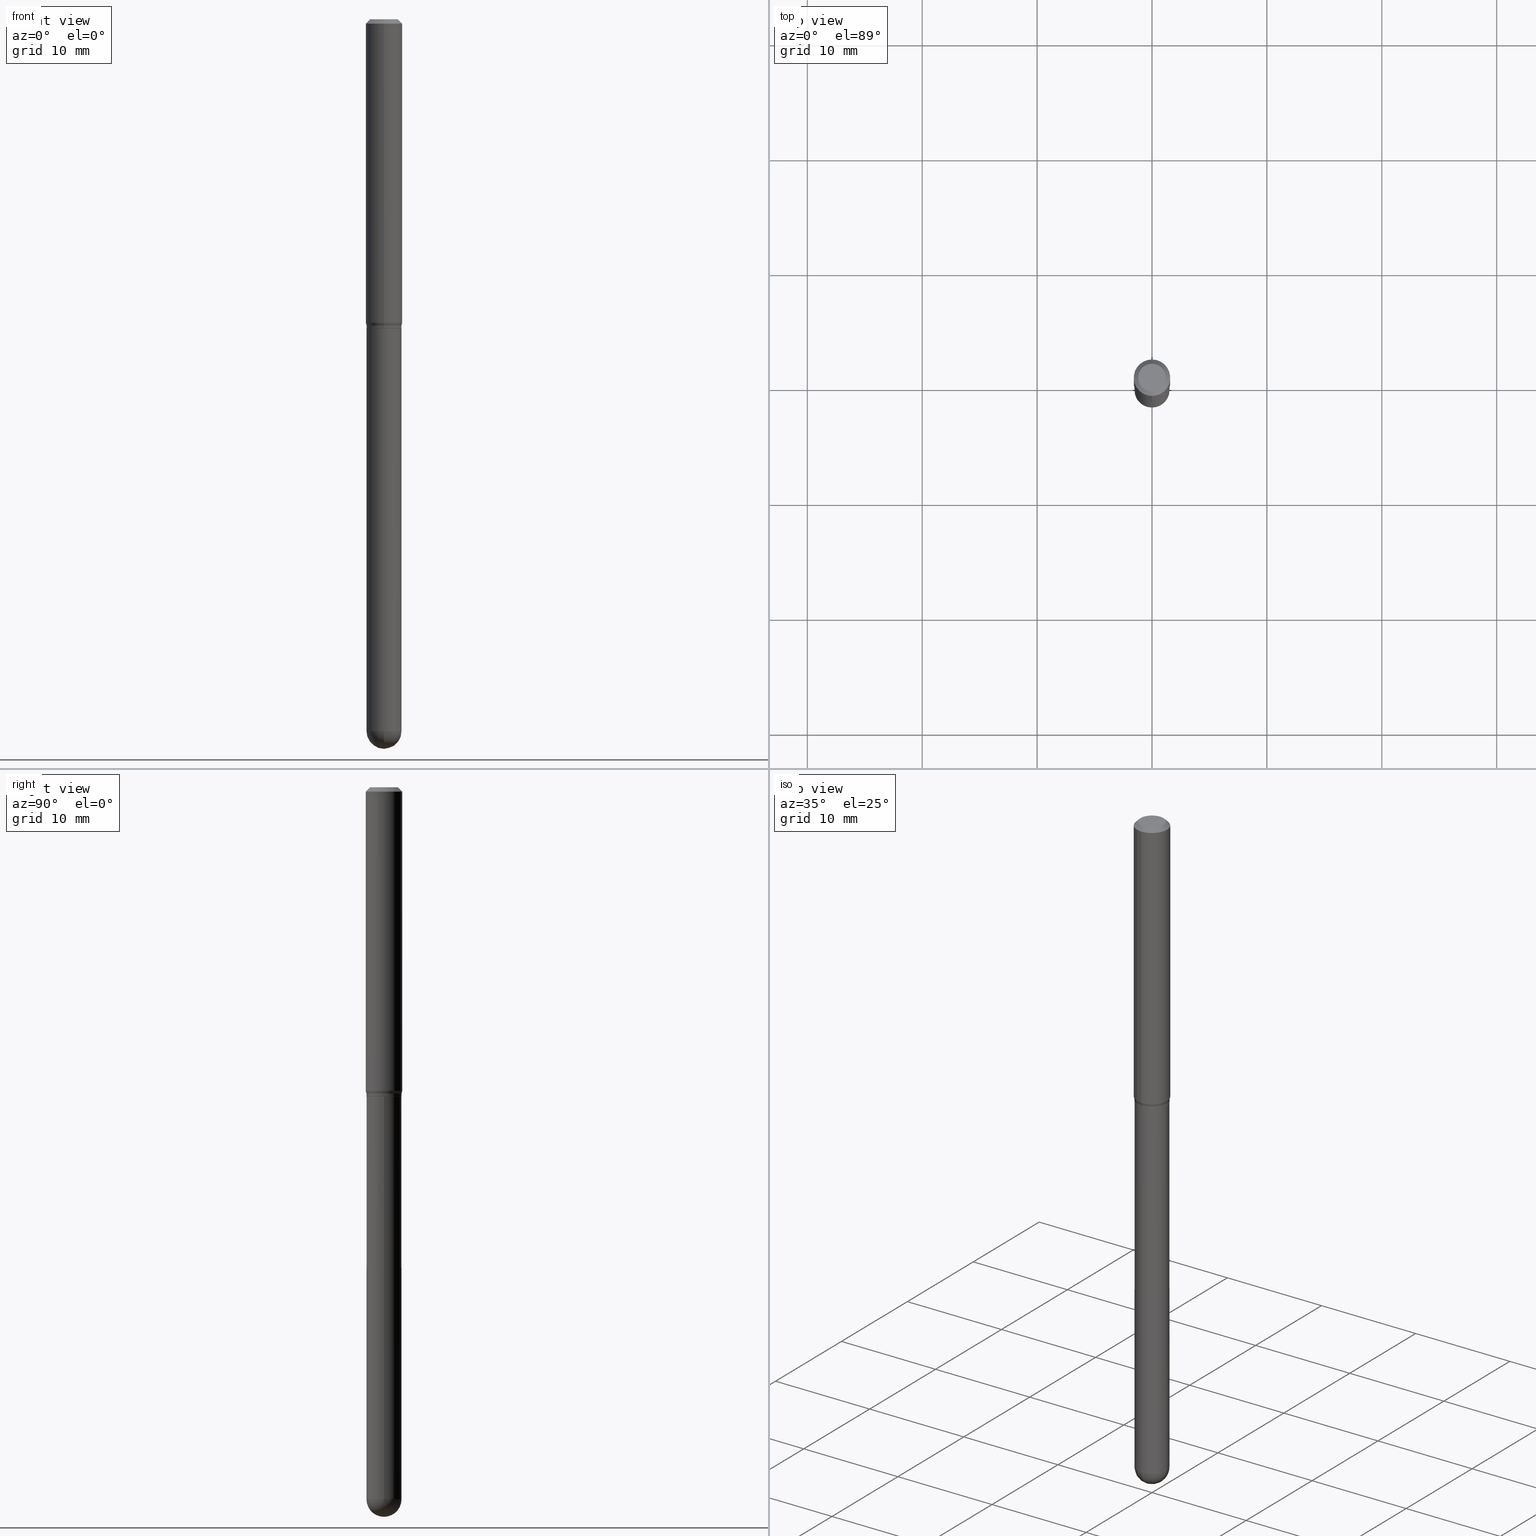
[diagram: canonical four-view strip — front | top / right | iso, engineering-drawing reading convention]
A machine part, canonical four-view strip (front | top / right | iso — engineering-drawing reading convention). The complete STEP part file that produces these views, byte-faithful:
ISO-10303-21;
HEADER;
FILE_DESCRIPTION (( 'STEP AP203' ),
    '1' );
FILE_NAME ('01032.STEP',
    '2024-03-07T19:58:30',
    ( '' ),
    ( '' ),
    'SwSTEP 2.0',
    'SolidWorks 2023',
    '' );
FILE_SCHEMA (( 'CONFIG_CONTROL_DESIGN' ));
ENDSEC;

DATA;
#1 = APPROVAL_DATE_TIME ( #351, #129 ) ;
#2 = VERTEX_POINT ( 'NONE', #322 ) ;
#3 = DIRECTION ( 'NONE',  ( 4.937700262164548042E-15, 0.7071067811865451302, -0.7071067811865499042 ) ) ;
#4 = DIRECTION ( 'NONE',  ( 5.024295867788190974E-15, 0.7071067811865681119, 0.7071067811865270336 ) ) ;
#5 = EDGE_CURVE ( 'NONE', #162, #45, #431, .T. ) ;
#6 = CARTESIAN_POINT ( 'NONE',  ( 4.227729277772853776E-16, 0.05949999999999628503, -1.060000000000000497 ) ) ;
#7 = ORIENTED_EDGE ( 'NONE', *, *, #119, .F. ) ;
#8 = DATE_AND_TIME ( #61, #331 ) ;
#9 = VERTEX_POINT ( 'NONE', #56 ) ;
#10 = AXIS2_PLACEMENT_3D ( 'NONE', #409, #247, #210 ) ;
#11 = APPROVAL_PERSON_ORGANIZATION ( #443, #129, #76 ) ;
#12 = DIRECTION ( 'NONE',  ( 6.982962677686265922E-15, 1.000000000000000000, 0.000000000000000000 ) ) ;
#13 = DIRECTION ( 'NONE',  ( -1.807323732225338028E-15, -0.2588190451025192962, 0.9659258262890687563 ) ) ;
#14 = ORIENTED_EDGE ( 'NONE', *, *, #426, .F. ) ;
#15 = EDGE_CURVE ( 'NONE', #367, #2, #197, .T. ) ;
#16 = CARTESIAN_POINT ( 'NONE',  ( 2.567574004537979916E-29, -3.666296337842626652E-15, -1.050000000000000266 ) ) ;
#17 = EDGE_LOOP ( 'NONE', ( #459, #114, #277, #239 ) ) ;
#18 = CARTESIAN_POINT ( 'NONE',  ( 2.592027090295484369E-29, -3.701213445822080051E-15, -1.060000000000000275 ) ) ;
#19 = AXIS2_PLACEMENT_3D ( 'NONE', #461, #93, #135 ) ;
#20 = AXIS2_PLACEMENT_3D ( 'NONE', #429, #22, #179 ) ;
#21 = CARTESIAN_POINT ( 'NONE',  ( -0.06000000000000001166, 4.263256414560601944E-16, -2.951361054152943763E-30 ) ) ;
#22 = DIRECTION ( 'NONE',  ( -2.445308575750456249E-29, 3.491710797945357683E-15, 1.000000000000000000 ) ) ;
#23 = DIRECTION ( 'NONE',  ( 1.000000000000000000, -6.982962677686266711E-15, 4.876176775795935793E-29 ) ) ;
#24 = DIRECTION ( 'NONE',  ( -2.445308575750456249E-29, 3.491710797945358078E-15, 1.000000000000000000 ) ) ;
#25 = CARTESIAN_POINT ( 'NONE',  ( 0.000000000000000000, 0.000000000000000000, 0.000000000000000000 ) ) ;
#26 = VECTOR ( 'NONE', #339, 39.37007874015748143 ) ;
#27 = APPROVAL_PERSON_ORGANIZATION ( #170, #274, #84 ) ;
#28 = ADVANCED_FACE ( 'NONE', ( #209 ), #494, .T. ) ;
#29 = DIRECTION ( 'NONE',  ( -2.445308575750456249E-29, 3.491710797945357683E-15, 1.000000000000000000 ) ) ;
#30 = CARTESIAN_POINT ( 'NONE',  ( 3.316907271900976096E-16, 0.04749999999999999362, -1.702809730446424870E-16 ) ) ;
#31 = DIRECTION ( 'NONE',  ( 1.000000000000000000, -6.982962677686266711E-15, 0.000000000000000000 ) ) ;
#32 = DIRECTION ( 'NONE',  ( -1.000000000000000000, 7.105427357601001070E-15, -4.926315508542082329E-29 ) ) ;
#33 = CARTESIAN_POINT ( 'NONE',  ( 2.592027090295484369E-29, -3.701213445822080051E-15, -1.060000000000000275 ) ) ;
#34 = FACE_OUTER_BOUND ( 'NONE', #282, .T. ) ;
#35 = EDGE_CURVE ( 'NONE', #212, #160, #457, .T. ) ;
#36 = CIRCLE ( 'NONE', #165, 0.06000000000000001166 ) ;
#37 = DATE_AND_TIME ( #73, #103 ) ;
#38 = ORIENTED_EDGE ( 'NONE', *, *, #300, .T. ) ;
#39 = DIRECTION ( 'NONE',  ( 0.000000000000000000, 0.000000000000000000, 1.000000000000000000 ) ) ;
#40 = DIRECTION ( 'NONE',  ( 6.982962677686265922E-15, 1.000000000000000000, -3.483106191921935554E-15 ) ) ;
#41 = EDGE_LOOP ( 'NONE', ( #43, #237, #121, #147, #479 ) ) ;
#42 = EDGE_CURVE ( 'NONE', #482, #268, #262, .T. ) ;
#43 = ORIENTED_EDGE ( 'NONE', *, *, #181, .T. ) ;
#44 = AXIS2_PLACEMENT_3D ( 'NONE', #332, #168, #292 ) ;
#45 = VERTEX_POINT ( 'NONE', #502 ) ;
#46 = EDGE_LOOP ( 'NONE', ( #352, #89, #131, #201 ) ) ;
#47 = PERSON_AND_ORGANIZATION ( #392, #235 ) ;
#48 = ORIENTED_EDGE ( 'NONE', *, *, #35, .F. ) ;
#49 = ORIENTED_EDGE ( 'NONE', *, *, #228, .T. ) ;
#50 = CALENDAR_DATE ( 2024, 7, 3 ) ;
#51 = ADVANCED_FACE ( 'NONE', ( #230 ), #176, .T. ) ;
#52 = EDGE_LOOP ( 'NONE', ( #416, #348, #203, #122 ) ) ;
#53 = SECURITY_CLASSIFICATION_LEVEL ( 'unclassified' ) ;
#54 = VECTOR ( 'NONE', #138, 39.37007874015748143 ) ;
#55 = LOCAL_TIME ( 14, 58, 30.00000000000000000, #194 ) ;
#56 = CARTESIAN_POINT ( 'NONE',  ( -0.06000000000000001166, -5.683766701519444970E-15, -2.440000000000000391 ) ) ;
#57 = ORIENTED_EDGE ( 'NONE', *, *, #293, .T. ) ;
#58 = DIRECTION ( 'NONE',  ( -6.982962677686266711E-15, -1.000000000000000000, 3.491710797945358078E-15 ) ) ;
#59 = LINE ( 'NONE', #418, #290 ) ;
#60 = VERTEX_POINT ( 'NONE', #199 ) ;
#61 = CALENDAR_DATE ( 2024, 7, 3 ) ;
#62 = ADVANCED_FACE ( 'NONE', ( #394 ), #507, .T. ) ;
#63 = DIRECTION ( 'NONE',  ( -1.000000000000000000, 6.982962677686265922E-15, -4.883557194083112340E-29 ) ) ;
#64 = VECTOR ( 'NONE', #102, 39.37007874015748143 ) ;
#65 = DIRECTION ( 'NONE',  ( 1.000000000000000000, -6.982962677686266711E-15, 4.876176775795935793E-29 ) ) ;
#66 = DIRECTION ( 'NONE',  ( -2.445468806185136877E-29, 3.491481338843145188E-15, 1.000000000000000000 ) ) ;
#67 = LINE ( 'NONE', #140, #64 ) ;
#68 = EDGE_CURVE ( 'NONE', #317, #449, #451, .T. ) ;
#69 = DIRECTION ( 'NONE',  ( -2.445308575750456249E-29, 3.491710797945357683E-15, 1.000000000000000000 ) ) ;
#70 = DIRECTION ( 'NONE',  ( -2.445308575750456249E-29, 3.491710797945357683E-15, 1.000000000000000000 ) ) ;
#71 = ADVANCED_FACE ( 'NONE', ( #275 ), #144, .T. ) ;
#72 = CARTESIAN_POINT ( 'NONE',  ( 0.05999999999999999778, -4.119947979834910928E-15, -1.060000000000000275 ) ) ;
#73 = CALENDAR_DATE ( 2024, 7, 3 ) ;
#74 = AXIS2_PLACEMENT_3D ( 'NONE', #460, #238, #12 ) ;
#75 = APPROVAL_PERSON_ORGANIZATION ( #166, #424, #406 ) ;
#76 = APPROVAL_ROLE ( '' ) ;
#77 = EDGE_LOOP ( 'NONE', ( #113, #49 ) ) ;
#78 = ORIENTED_EDGE ( 'NONE', *, *, #252, .F. ) ;
#79 = CC_DESIGN_PERSON_AND_ORGANIZATION_ASSIGNMENT ( #276, #437, ( #174 ) ) ;
#80 = DIRECTION ( 'NONE',  ( -2.445468806185136597E-29, 3.491481338843145583E-15, 1.000000000000000000 ) ) ;
#81 = AXIS2_PLACEMENT_3D ( 'NONE', #16, #92, #96 ) ;
#82 = VERTEX_POINT ( 'NONE', #251 ) ;
#83 = ORIENTED_EDGE ( 'NONE', *, *, #337, .F. ) ;
#84 = APPROVAL_ROLE ( '' ) ;
#85 = PRODUCT_RELATED_PRODUCT_CATEGORY ( 'detail', '', ( #174 ) ) ;
#86 = ADVANCED_FACE ( 'NONE', ( #323 ), #455, .T. ) ;
#87 = ORIENTED_EDGE ( 'NONE', *, *, #35, .T. ) ;
#88 = FACE_OUTER_BOUND ( 'NONE', #456, .T. ) ;
#89 = ORIENTED_EDGE ( 'NONE', *, *, #337, .T. ) ;
#90 = AXIS2_PLACEMENT_3D ( 'NONE', #297, #69, #341 ) ;
#91 = CC_DESIGN_APPROVAL ( #424, ( #156 ) ) ;
#92 = DIRECTION ( 'NONE',  ( -2.445308575750456249E-29, 3.491710797945357683E-15, 1.000000000000000000 ) ) ;
#93 = DIRECTION ( 'NONE',  ( -1.000000000000000000, 6.982962677686265922E-15, -4.883557194083112340E-29 ) ) ;
#94 = ORIENTED_EDGE ( 'NONE', *, *, #441, .T. ) ;
#95 = EDGE_CURVE ( 'NONE', #9, #2, #496, .T. ) ;
#96 = DIRECTION ( 'NONE',  ( -6.982962677686265922E-15, -1.000000000000000000, 4.553079989440424892E-15 ) ) ;
#97 = DIRECTION ( 'NONE',  ( -2.445468806185136597E-29, 3.491481338843145583E-15, 1.000000000000000000 ) ) ;
#98 = DIRECTION ( 'NONE',  ( 1.000000000000000000, -6.982962677686268288E-15, 0.000000000000000000 ) ) ;
#99 = DIRECTION ( 'NONE',  ( -2.445468806185136597E-29, 3.491481338843145583E-15, 1.000000000000000000 ) ) ;
#100 = CLOSED_SHELL ( 'NONE', ( #242, #86, #403, #173, #136 ) ) ;
#101 = AXIS2_PLACEMENT_3D ( 'NONE', #163, #454, #467 ) ;
#102 = DIRECTION ( 'NONE',  ( -2.445468806185136877E-29, 3.491481338843145188E-15, 1.000000000000000000 ) ) ;
#103 = LOCAL_TIME ( 14, 58, 30.00000000000000000, #266 ) ;
#104 = DIRECTION ( 'NONE',  ( 2.438088387897960049E-29, -3.491481338843145188E-15, -1.000000000000000000 ) ) ;
#105 = EDGE_CURVE ( 'NONE', #202, #449, #124, .T. ) ;
#106 = CARTESIAN_POINT ( 'NONE',  ( 4.245492846166858268E-16, 0.05949999999999628503, -1.060000000000000497 ) ) ;
#107 = CARTESIAN_POINT ( 'NONE',  ( 2.592027090295484369E-29, -3.701213445822080051E-15, -1.060000000000000275 ) ) ;
#108 = LINE ( 'NONE', #296, #310 ) ;
#109 = CIRCLE ( 'NONE', #401, 0.05949999999999999040 ) ;
#110 = ADVANCED_FACE ( 'NONE', ( #88 ), #336, .T. ) ;
#111 = CARTESIAN_POINT ( 'NONE',  ( 2.590804436007608978E-29, -3.699467590423106908E-15, -1.059500000000000108 ) ) ;
#112 = APPROVAL_STATUS ( 'not_yet_approved' ) ;
#113 = ORIENTED_EDGE ( 'NONE', *, *, #426, .T. ) ;
#114 = ORIENTED_EDGE ( 'NONE', *, *, #305, .T. ) ;
#115 = AXIS2_PLACEMENT_3D ( 'NONE', #130, #63, #329 ) ;
#116 = AXIS2_PLACEMENT_3D ( 'NONE', #120, #231, #475 ) ;
#117 = LINE ( 'NONE', #6, #184 ) ;
#118 = VERTEX_POINT ( 'NONE', #295 ) ;
#119 = EDGE_CURVE ( 'NONE', #9, #212, #36, .T. ) ;
#120 = CARTESIAN_POINT ( 'NONE',  ( 0.000000000000000000, 0.000000000000000000, 0.000000000000000000 ) ) ;
#121 = ORIENTED_EDGE ( 'NONE', *, *, #15, .F. ) ;
#122 = ORIENTED_EDGE ( 'NONE', *, *, #320, .F. ) ;
#123 = EDGE_LOOP ( 'NONE', ( #359, #492, #273, #48 ) ) ;
#124 = CIRCLE ( 'NONE', #438, 0.06250000000000000000 ) ;
#125 = PRODUCT_DEFINITION_FORMATION_WITH_SPECIFIED_SOURCE ( 'ANY', '', #174, .NOT_KNOWN. ) ;
#126 = VERTEX_POINT ( 'NONE', #421 ) ;
#127 = ORIENTED_EDGE ( 'NONE', *, *, #252, .T. ) ;
#128 = ORIENTED_EDGE ( 'NONE', *, *, #446, .T. ) ;
#129 = APPROVAL ( #112, 'UNSPECIFIED' ) ;
#130 = CARTESIAN_POINT ( 'NONE',  ( 5.961812889356657010E-29, -8.526562347572160482E-15, -2.440000000000000391 ) ) ;
#131 = ORIENTED_EDGE ( 'NONE', *, *, #320, .T. ) ;
#132 = VECTOR ( 'NONE', #186, 39.37007874015748143 ) ;
#133 = AXIS2_PLACEMENT_3D ( 'NONE', #111, #70, #259 ) ;
#134 = CARTESIAN_POINT ( 'NONE',  ( 3.667962863625686808E-31, -5.237566196918039483E-17, -0.01500000000000000812 ) ) ;
#135 = DIRECTION ( 'NONE',  ( 6.982962677686265922E-15, 1.000000000000000000, -4.553079989440442247E-15 ) ) ;
#136 = ADVANCED_FACE ( 'NONE', ( #427 ), #219, .T. ) ;
#137 = CLOSED_SHELL ( 'NONE', ( #462, #71, #51, #344, #28, #110, #498, #200, #385, #161, #62, #361 ) ) ;
#138 = DIRECTION ( 'NONE',  ( -2.445308575750456249E-29, 3.491710797945358078E-15, 1.000000000000000000 ) ) ;
#139 = AXIS2_PLACEMENT_3D ( 'NONE', #30, #384, #334 ) ;
#140 = CARTESIAN_POINT ( 'NONE',  ( 0.06000000000000001166, -4.189777606611760914E-16, 2.925706065477562106E-30 ) ) ;
#141 = DIRECTION ( 'NONE',  ( -2.445468806185136597E-29, 3.491481338843145583E-15, 1.000000000000000000 ) ) ;
#142 = DIRECTION ( 'NONE',  ( -6.982962677686265922E-15, -1.000000000000000000, 3.491710797945357289E-15 ) ) ;
#143 = CARTESIAN_POINT ( 'NONE',  ( 0.000000000000000000, 0.000000000000000000, 0.000000000000000000 ) ) ;
#144 = CONICAL_SURFACE ( 'NONE', #44, 0.05949999999999999040, 0.7853981633974739252 ) ;
#145 = LOCAL_TIME ( 14, 58, 30.00000000000000000, #407 ) ;
#146 =( NAMED_UNIT ( * ) PLANE_ANGLE_UNIT ( ) SI_UNIT ( $, .RADIAN. ) );
#147 = ORIENTED_EDGE ( 'NONE', *, *, #293, .F. ) ;
#148 = DIRECTION ( 'NONE',  ( 1.000000000000000000, 0.000000000000000000, 0.000000000000000000 ) ) ;
#149 = VERTEX_POINT ( 'NONE', #180 ) ;
#150 = PERSON_AND_ORGANIZATION ( #392, #235 ) ;
#151 = DIMENSIONAL_EXPONENTS ( 1.000000000000000000, 0.000000000000000000, 0.000000000000000000, 0.000000000000000000, 0.000000000000000000, 0.000000000000000000, 0.000000000000000000 ) ;
#152 = APPLICATION_CONTEXT ( 'configuration controlled 3d designs of mechanical parts and assemblies' ) ;
#153 = EDGE_CURVE ( 'NONE', #149, #482, #59, .T. ) ;
#154 = ORIENTED_EDGE ( 'NONE', *, *, #458, .T. ) ;
#155 = AXIS2_PLACEMENT_3D ( 'NONE', #143, #29, #468 ) ;
#156 = SECURITY_CLASSIFICATION ( '', '', #53 ) ;
#157 = CARTESIAN_POINT ( 'NONE',  ( 0.000000000000000000, 0.000000000000000000, 0.000000000000000000 ) ) ;
#158 = EDGE_LOOP ( 'NONE', ( #154, #127, #205, #510 ) ) ;
#159 = CARTESIAN_POINT ( 'NONE',  ( 4.440892098500625669E-16, 0.06250000000000000000, -2.182319248715848552E-16 ) ) ;
#160 = VERTEX_POINT ( 'NONE', #333 ) ;
#161 = ADVANCED_FACE ( 'NONE', ( #376 ), #243, .F. ) ;
#162 = VERTEX_POINT ( 'NONE', #211 ) ;
#163 = CARTESIAN_POINT ( 'NONE',  ( 2.544758964925770056E-29, -3.633718232584457154E-15, -1.040669872981078825 ) ) ;
#164 = ORIENTED_EDGE ( 'NONE', *, *, #5, .F. ) ;
#165 = AXIS2_PLACEMENT_3D ( 'NONE', #415, #99, #287 ) ;
#166 = PERSON_AND_ORGANIZATION ( #392, #235 ) ;
#167 = MANIFOLD_SOLID_BREP ( 'Body-Move/Copy2[1]', #100 ) ;
#168 = DIRECTION ( 'NONE',  ( -2.445308575750456249E-29, 3.491710797945357683E-15, 1.000000000000000000 ) ) ;
#169 = ORIENTED_EDGE ( 'NONE', *, *, #458, .F. ) ;
#170 = PERSON_AND_ORGANIZATION ( #392, #235 ) ;
#171 = CARTESIAN_POINT ( 'NONE',  ( -4.263256414560002409E-16, -0.06000000000000851180, -2.439999999999999947 ) ) ;
#172 = ORIENTED_EDGE ( 'NONE', *, *, #441, .F. ) ;
#173 = ADVANCED_FACE ( 'NONE', ( #370 ), #175, .T. ) ;
#174 = PRODUCT ( '01032', '01032', '', ( #278 ) ) ;
#175 = SPHERICAL_SURFACE ( 'NONE', #115, 0.05999999999999995615 ) ;
#176 = CONICAL_SURFACE ( 'NONE', #381, 0.06250000000000000000, 0.7853981633974483900 ) ;
#177 = UNCERTAINTY_MEASURE_WITH_UNIT (LENGTH_MEASURE( 1.000000000000000082E-05 ), #269, 'distance_accuracy_value', 'NONE');
#178 = DIRECTION ( 'NONE',  ( -2.445308575750456249E-29, 3.491710797945357683E-15, 1.000000000000000000 ) ) ;
#179 = DIRECTION ( 'NONE',  ( -6.982962677686265922E-15, -1.000000000000000000, 4.553079989440424892E-15 ) ) ;
#180 = CARTESIAN_POINT ( 'NONE',  ( -4.189777606611515874E-16, -0.06000000000000384887, -1.050000000000000044 ) ) ;
#181 = EDGE_CURVE ( 'NONE', #45, #9, #216, .T. ) ;
#182 = CARTESIAN_POINT ( 'NONE',  ( 0.000000000000000000, 0.000000000000000000, 0.000000000000000000 ) ) ;
#183 = AXIS2_PLACEMENT_3D ( 'NONE', #497, #97, #23 ) ;
#184 = VECTOR ( 'NONE', #4, 39.37007874015748143 ) ;
#185 = CC_DESIGN_PERSON_AND_ORGANIZATION_ASSIGNMENT ( #47, #206, ( #125 ) ) ;
#186 = DIRECTION ( 'NONE',  ( -4.937700262164674260E-15, -0.7071067811865632269, 0.7071067811865319186 ) ) ;
#187 = DIRECTION ( 'NONE',  ( -2.445308575750456249E-29, 3.491710797945357683E-15, 1.000000000000000000 ) ) ;
#188 = APPLICATION_PROTOCOL_DEFINITION ( 'international standard', 'config_control_design', 1994, #281 ) ;
#189 = DIRECTION ( 'NONE',  ( -2.445308575750456249E-29, 3.491710797945357683E-15, 1.000000000000000000 ) ) ;
#190 = PLANE ( 'NONE',  #303 ) ;
#191 = CARTESIAN_POINT ( 'NONE',  ( 5.961812889356657010E-29, -8.526562347572160482E-15, -2.440000000000000391 ) ) ;
#192 = EDGE_LOOP ( 'NONE', ( #440, #83 ) ) ;
#193 = EDGE_CURVE ( 'NONE', #118, #327, #109, .T. ) ;
#194 = COORDINATED_UNIVERSAL_TIME_OFFSET ( 5, 0, .BEHIND. ) ;
#195 = EDGE_LOOP ( 'NONE', ( #233, #357, #87, #57, #291 ) ) ;
#196 = ORIENTED_EDGE ( 'NONE', *, *, #511, .T. ) ;
#197 = CIRCLE ( 'NONE', #356, 0.05999999999999999778 ) ;
#198 = CYLINDRICAL_SURFACE ( 'NONE', #382, 0.06000000000000012268 ) ;
#199 = CARTESIAN_POINT ( 'NONE',  ( -4.189777606611499604E-16, -0.06000000000000368927, -1.059499999999999886 ) ) ;
#200 = ADVANCED_FACE ( 'NONE', ( #380 ), #447, .T. ) ;
#201 = ORIENTED_EDGE ( 'NONE', *, *, #300, .F. ) ;
#202 = VERTEX_POINT ( 'NONE', #241 ) ;
#203 = ORIENTED_EDGE ( 'NONE', *, *, #446, .F. ) ;
#204 = COORDINATED_UNIVERSAL_TIME_OFFSET ( 5, 0, .BEHIND. ) ;
#205 = ORIENTED_EDGE ( 'NONE', *, *, #42, .F. ) ;
#206 = PERSON_AND_ORGANIZATION_ROLE ( 'creator' ) ;
#207 = CIRCLE ( 'NONE', #495, 0.06250000000000000000 ) ;
#208 = CARTESIAN_POINT ( 'NONE',  ( 2.544758964925770056E-29, -3.633718232584457154E-15, -1.040669872981078825 ) ) ;
#209 = FACE_OUTER_BOUND ( 'NONE', #158, .T. ) ;
#210 = DIRECTION ( 'NONE',  ( 1.000000000000000000, -6.982962677686266711E-15, 0.000000000000000000 ) ) ;
#211 = CARTESIAN_POINT ( 'NONE',  ( 6.111106516595303887E-29, -8.732377287505306871E-15, -2.500000000000000000 ) ) ;
#212 = VERTEX_POINT ( 'NONE', #171 ) ;
#213 = EDGE_CURVE ( 'NONE', #160, #45, #500, .T. ) ;
#214 = FACE_OUTER_BOUND ( 'NONE', #41, .T. ) ;
#215 = DATE_AND_TIME ( #417, #145 ) ;
#216 = CIRCLE ( 'NONE', #345, 0.06000000000000001166 ) ;
#217 = CIRCLE ( 'NONE', #255, 0.05999999999999999778 ) ;
#218 = DIRECTION ( 'NONE',  ( 6.982962677686265922E-15, 1.000000000000000000, -3.483106191921935554E-15 ) ) ;
#219 = CYLINDRICAL_SURFACE ( 'NONE', #183, 0.06000000000000001166 ) ;
#220 = FACE_OUTER_BOUND ( 'NONE', #362, .T. ) ;
#221 = DIRECTION ( 'NONE',  ( -6.982962677686265922E-15, -1.000000000000000000, 4.553079989440434359E-15 ) ) ;
#222 = AXIS2_PLACEMENT_3D ( 'NONE', #260, #506, #463 ) ;
#223 = CARTESIAN_POINT ( 'NONE',  ( -3.773273898774340269E-16, -0.04749999999999999362, 1.570068426179284564E-16 ) ) ;
#224 = DIRECTION ( 'NONE',  ( -2.445308575750456249E-29, 3.491710797945357683E-15, 1.000000000000000000 ) ) ;
#225 = DIRECTION ( 'NONE',  ( -2.445468806185136597E-29, 3.491481338843145583E-15, 1.000000000000000000 ) ) ;
#226 = DIRECTION ( 'NONE',  ( -2.445308575750456249E-29, 3.491710797945357683E-15, 1.000000000000000000 ) ) ;
#227 = CALENDAR_DATE ( 2024, 7, 3 ) ;
#228 = EDGE_CURVE ( 'NONE', #245, #317, #465, .T. ) ;
#229 = CARTESIAN_POINT ( 'NONE',  ( 2.592196934556245308E-29, -3.700970219173735083E-15, -1.060000000000000275 ) ) ;
#230 = FACE_OUTER_BOUND ( 'NONE', #17, .T. ) ;
#231 = DIRECTION ( 'NONE',  ( -2.445308575750456249E-29, 3.491710797945357683E-15, 1.000000000000000000 ) ) ;
#232 = CARTESIAN_POINT ( 'NONE',  ( 2.163956331204925318E-46, -3.089961636286159752E-32, -8.849420284476020908E-18 ) ) ;
#233 = ORIENTED_EDGE ( 'NONE', *, *, #95, .F. ) ;
#234 = AXIS2_PLACEMENT_3D ( 'NONE', #25, #225, #65 ) ;
#235 = ORGANIZATION ( 'UNSPECIFIED', 'UNSPECIFIED', '' ) ;
#236 = EDGE_LOOP ( 'NONE', ( #474, #94, #404, #312 ) ) ;
#237 = ORIENTED_EDGE ( 'NONE', *, *, #95, .T. ) ;
#238 = DIRECTION ( 'NONE',  ( 1.000000000000000000, -6.982962677686265922E-15, 4.883557194083112340E-29 ) ) ;
#239 = ORIENTED_EDGE ( 'NONE', *, *, #68, .F. ) ;
#240 = APPROVAL_DATE_TIME ( #215, #274 ) ;
#241 = CARTESIAN_POINT ( 'NONE',  ( -4.364351673553912750E-16, -0.06250000000000005551, -0.01499999999999979128 ) ) ;
#242 = ADVANCED_FACE ( 'NONE', ( #214 ), #375, .T. ) ;
#243 = PLANE ( 'NONE',  #302 ) ;
#244 = VECTOR ( 'NONE', #389, 39.37007874015748143 ) ;
#245 = VERTEX_POINT ( 'NONE', #223 ) ;
#246 = CIRCLE ( 'NONE', #448, 0.05999999999999995615 ) ;
#247 = DIRECTION ( 'NONE',  ( -2.445468806185136597E-29, 3.491481338843145583E-15, 1.000000000000000000 ) ) ;
#248 = CARTESIAN_POINT ( 'NONE',  ( 2.567574004537979916E-29, -3.666296337842626652E-15, -1.050000000000000266 ) ) ;
#249 = ORIENTED_EDGE ( 'NONE', *, *, #261, .T. ) ;
#250 = DIRECTION ( 'NONE',  ( -2.445308575750456249E-29, 3.491710797945357683E-15, 1.000000000000000000 ) ) ;
#251 = CARTESIAN_POINT ( 'NONE',  ( 4.352074256530875856E-16, 0.05999999999999652833, -1.050000000000000488 ) ) ;
#252 = EDGE_CURVE ( 'NONE', #82, #268, #425, .T. ) ;
#253 = AXIS2_PLACEMENT_3D ( 'NONE', #379, #419, #294 ) ;
#254 = FACE_OUTER_BOUND ( 'NONE', #405, .T. ) ;
#255 = AXIS2_PLACEMENT_3D ( 'NONE', #229, #80, #272 ) ;
#256 = CARTESIAN_POINT ( 'NONE',  ( 4.189777606612018773E-16, 0.05999999999999629241, -1.060000000000000497 ) ) ;
#257 = DIRECTION ( 'NONE',  ( -6.982962677686265922E-15, -1.000000000000000000, 4.553079989440424892E-15 ) ) ;
#258 = CARTESIAN_POINT ( 'NONE',  ( 4.263256414560608846E-16, 0.06000000000000012268, -2.095026478767218751E-16 ) ) ;
#259 = DIRECTION ( 'NONE',  ( -6.982962677686265922E-15, -1.000000000000000000, 4.553079989440434359E-15 ) ) ;
#260 = CARTESIAN_POINT ( 'NONE',  ( 2.567574004537979916E-29, -3.666296337842626652E-15, -1.050000000000000266 ) ) ;
#261 = EDGE_CURVE ( 'NONE', #60, #149, #471, .T. ) ;
#262 = CIRCLE ( 'NONE', #101, 0.06250000000000000000 ) ;
#263 = CC_DESIGN_APPROVAL ( #129, ( #505 ) ) ;
#264 = DIRECTION ( 'NONE',  ( -2.445308575750456249E-29, 3.491710797945357683E-15, 1.000000000000000000 ) ) ;
#265 = CARTESIAN_POINT ( 'NONE',  ( 2.590804436007608978E-29, -3.699467590423106908E-15, -1.059500000000000108 ) ) ;
#266 = COORDINATED_UNIVERSAL_TIME_OFFSET ( 5, 0, .BEHIND. ) ;
#267 = EDGE_CURVE ( 'NONE', #482, #202, #108, .T. ) ;
#268 = VERTEX_POINT ( 'NONE', #386 ) ;
#269 =( CONVERSION_BASED_UNIT ( 'INCH', #313 ) LENGTH_UNIT ( ) NAMED_UNIT ( #151 ) );
#270 = AXIS2_PLACEMENT_3D ( 'NONE', #369, #414, #58 ) ;
#271 = ORIENTED_EDGE ( 'NONE', *, *, #480, .T. ) ;
#272 = DIRECTION ( 'NONE',  ( 1.000000000000000000, -6.982962677686268288E-15, 0.000000000000000000 ) ) ;
#273 = ORIENTED_EDGE ( 'NONE', *, *, #213, .F. ) ;
#274 = APPROVAL ( #321, 'UNSPECIFIED' ) ;
#275 = FACE_OUTER_BOUND ( 'NONE', #52, .T. ) ;
#276 = PERSON_AND_ORGANIZATION ( #392, #235 ) ;
#277 = ORIENTED_EDGE ( 'NONE', *, *, #105, .T. ) ;
#278 = MECHANICAL_CONTEXT ( 'NONE', #281, 'mechanical' ) ;
#279 = ORIENTED_EDGE ( 'NONE', *, *, #261, .F. ) ;
#280 = VECTOR ( 'NONE', #301, 39.37007874015748854 ) ;
#281 = APPLICATION_CONTEXT ( 'configuration controlled 3d designs of mechanical parts and assemblies' ) ;
#282 = EDGE_LOOP ( 'NONE', ( #398, #196 ) ) ;
#283 = CARTESIAN_POINT ( 'NONE',  ( 4.364351673553919652E-16, 0.06249999999999995143, -0.01500000000000022669 ) ) ;
#284 = ORIENTED_EDGE ( 'NONE', *, *, #490, .T. ) ;
#285 = SHAPE_DEFINITION_REPRESENTATION ( #378, #319 ) ;
#286 = EDGE_CURVE ( 'NONE', #126, #82, #428, .T. ) ;
#287 = DIRECTION ( 'NONE',  ( 1.000000000000000000, -6.982962677686266711E-15, 0.000000000000000000 ) ) ;
#288 = EDGE_LOOP ( 'NONE', ( #350, #38, #249, #402 ) ) ;
#289 = APPROVAL_STATUS ( 'not_yet_approved' ) ;
#290 = VECTOR ( 'NONE', #13, 39.37007874015748854 ) ;
#291 = ORIENTED_EDGE ( 'NONE', *, *, #511, .F. ) ;
#292 = DIRECTION ( 'NONE',  ( -6.982962677686265922E-15, -1.000000000000000000, 4.591341165822292005E-15 ) ) ;
#293 = EDGE_CURVE ( 'NONE', #160, #367, #67, .T. ) ;
#294 = DIRECTION ( 'NONE',  ( 1.000000000000000000, -6.982962677686266711E-15, 0.000000000000000000 ) ) ;
#295 = CARTESIAN_POINT ( 'NONE',  ( -4.154862793223068546E-16, -0.05950000000000369577, -1.059999999999999831 ) ) ;
#296 = CARTESIAN_POINT ( 'NONE',  ( -4.364351673553916201E-16, -0.06250000000000000000, 2.182319248715848552E-16 ) ) ;
#297 = CARTESIAN_POINT ( 'NONE',  ( 2.592027090295484369E-29, -3.701213445822080051E-15, -1.060000000000000275 ) ) ;
#298 = DESIGN_CONTEXT ( 'detailed design', #152, 'design' ) ;
#299 = CARTESIAN_POINT ( 'NONE',  ( -4.154862793223068546E-16, -0.05950000000000369577, -1.059999999999999831 ) ) ;
#300 = EDGE_CURVE ( 'NONE', #126, #60, #422, .T. ) ;
#301 = DIRECTION ( 'NONE',  ( 1.839019923739607809E-15, 0.2588190451025260130, 0.9659258262890667579 ) ) ;
#302 = AXIS2_PLACEMENT_3D ( 'NONE', #18, #365, #411 ) ;
#303 = AXIS2_PLACEMENT_3D ( 'NONE', #256, #104, #397 ) ;
#304 = FACE_OUTER_BOUND ( 'NONE', #77, .T. ) ;
#305 = EDGE_CURVE ( 'NONE', #245, #202, #347, .T. ) ;
#306 = CARTESIAN_POINT ( 'NONE',  ( 0.000000000000000000, 0.000000000000000000, 0.000000000000000000 ) ) ;
#307 = ORIENTED_EDGE ( 'NONE', *, *, #286, .T. ) ;
#308 = DIRECTION ( 'NONE',  ( -6.982962677686265922E-15, -1.000000000000000000, 4.591341165822292005E-15 ) ) ;
#309 = PERSON_AND_ORGANIZATION_ROLE ( 'creator' ) ;
#310 = VECTOR ( 'NONE', #24, 39.37007874015748143 ) ;
#311 = LOCAL_TIME ( 14, 58, 30.00000000000000000, #377 ) ;
#312 = ORIENTED_EDGE ( 'NONE', *, *, #400, .F. ) ;
#313 = LENGTH_MEASURE_WITH_UNIT ( LENGTH_MEASURE( 0.02539999999999999897 ), #442 );
#314 = CARTESIAN_POINT ( 'NONE',  ( 3.667962863625686808E-31, -5.237566196918039483E-17, -0.01500000000000000812 ) ) ;
#315 = EDGE_LOOP ( 'NONE', ( #483, #14, #324, #489 ) ) ;
#316 = DIRECTION ( 'NONE',  ( -2.445308575750456249E-29, 3.491710797945357683E-15, 1.000000000000000000 ) ) ;
#317 = VERTEX_POINT ( 'NONE', #503 ) ;
#318 = ORIENTED_EDGE ( 'NONE', *, *, #354, .T. ) ;
#319 = ADVANCED_BREP_SHAPE_REPRESENTATION ( '01032', ( #167, #340, #412 ), #410 ) ;
#320 = EDGE_CURVE ( 'NONE', #118, #60, #391, .T. ) ;
#321 = APPROVAL_STATUS ( 'not_yet_approved' ) ;
#322 = CARTESIAN_POINT ( 'NONE',  ( -0.05999999999999999778, -5.683766701519444970E-15, -1.060000000000000275 ) ) ;
#323 = FACE_OUTER_BOUND ( 'NONE', #445, .T. ) ;
#324 = ORIENTED_EDGE ( 'NONE', *, *, #68, .T. ) ;
#325 = DATE_TIME_ROLE ( 'classification_date' ) ;
#326 = DIRECTION ( 'NONE',  ( -6.982962677686265922E-15, -1.000000000000000000, 3.483106191921935554E-15 ) ) ;
#327 = VERTEX_POINT ( 'NONE', #106 ) ;
#328 = CC_DESIGN_PERSON_AND_ORGANIZATION_ASSIGNMENT ( #363, #493, ( #156 ) ) ;
#329 = DIRECTION ( 'NONE',  ( 6.982962677686265922E-15, 1.000000000000000000, -4.553079989440442247E-15 ) ) ;
#330 = AXIS2_PLACEMENT_3D ( 'NONE', #248, #464, #257 ) ;
#331 = LOCAL_TIME ( 14, 58, 30.00000000000000000, #204 ) ;
#332 = CARTESIAN_POINT ( 'NONE',  ( 2.592027090295484369E-29, -3.701213445822080051E-15, -1.060000000000000275 ) ) ;
#333 = CARTESIAN_POINT ( 'NONE',  ( 0.06000000000000001166, -6.529070103636681305E-15, -2.440000000000000391 ) ) ;
#334 = DIRECTION ( 'NONE',  ( 6.982962677686265922E-15, 1.000000000000000000, -3.491710797945358078E-15 ) ) ;
#335 = AXIS2_PLACEMENT_3D ( 'NONE', #265, #264, #221 ) ;
#336 = CONICAL_SURFACE ( 'NONE', #330, 0.06000000000000018513, 0.2617993877991514062 ) ;
#337 = EDGE_CURVE ( 'NONE', #327, #118, #484, .T. ) ;
#338 = CC_DESIGN_APPROVAL ( #274, ( #125 ) ) ;
#339 = DIRECTION ( 'NONE',  ( -4.851104656540964275E-15, -0.7071067811865500152, -0.7071067811865450192 ) ) ;
#340 = MANIFOLD_SOLID_BREP ( 'Body-Move/Copy2[2]', #137 ) ;
#341 = DIRECTION ( 'NONE',  ( -6.982962677686265922E-15, -1.000000000000000000, 4.591341165822292005E-15 ) ) ;
#342 = DIRECTION ( 'NONE',  ( -6.982962677686265922E-15, -1.000000000000000000, 4.370956789862821150E-15 ) ) ;
#343 = CARTESIAN_POINT ( 'NONE',  ( 3.667962863625686808E-31, -5.237566196918039483E-17, -0.01500000000000000812 ) ) ;
#344 = ADVANCED_FACE ( 'NONE', ( #220 ), #509, .T. ) ;
#345 = AXIS2_PLACEMENT_3D ( 'NONE', #491, #141, #31 ) ;
#346 = CIRCLE ( 'NONE', #439, 0.06250000000000000000 ) ;
#347 = LINE ( 'NONE', #435, #26 ) ;
#348 = ORIENTED_EDGE ( 'NONE', *, *, #476, .T. ) ;
#349 = DIRECTION ( 'NONE',  ( -6.982962677686265922E-15, -1.000000000000000000, 3.491710797945357289E-15 ) ) ;
#350 = ORIENTED_EDGE ( 'NONE', *, *, #286, .F. ) ;
#351 = DATE_AND_TIME ( #227, #55 ) ;
#352 = ORIENTED_EDGE ( 'NONE', *, *, #476, .F. ) ;
#353 = APPLICATION_PROTOCOL_DEFINITION ( 'international standard', 'config_control_design', 1994, #152 ) ;
#354 = EDGE_CURVE ( 'NONE', #82, #149, #387, .T. ) ;
#355 = DIRECTION ( 'NONE',  ( -2.445308575750456249E-29, 3.491710797945357683E-15, 1.000000000000000000 ) ) ;
#356 = AXIS2_PLACEMENT_3D ( 'NONE', #487, #374, #98 ) ;
#357 = ORIENTED_EDGE ( 'NONE', *, *, #119, .T. ) ;
#358 = ORIENTED_EDGE ( 'NONE', *, *, #267, .F. ) ;
#359 = ORIENTED_EDGE ( 'NONE', *, *, #490, .F. ) ;
#360 = PERSON_AND_ORGANIZATION_ROLE ( 'design_supplier' ) ;
#361 = ADVANCED_FACE ( 'NONE', ( #430 ), #504, .T. ) ;
#362 = EDGE_LOOP ( 'NONE', ( #485, #271, #413, #358 ) ) ;
#363 = PERSON_AND_ORGANIZATION ( #392, #235 ) ;
#364 = VECTOR ( 'NONE', #3, 39.37007874015748143 ) ;
#365 = DIRECTION ( 'NONE',  ( -2.445308575750455688E-29, 3.491710797945358078E-15, 1.000000000000000000 ) ) ;
#366 = CIRCLE ( 'NONE', #478, 0.04749999999999999362 ) ;
#367 = VERTEX_POINT ( 'NONE', #72 ) ;
#368 = DATE_AND_TIME ( #50, #311 ) ;
#369 = CARTESIAN_POINT ( 'NONE',  ( 2.163956331204925318E-46, -3.089961636286159752E-32, -8.849420284476020908E-18 ) ) ;
#370 = FACE_OUTER_BOUND ( 'NONE', #123, .T. ) ;
#371 = ORIENTED_EDGE ( 'NONE', *, *, #181, .F. ) ;
#372 = PERSON_AND_ORGANIZATION ( #392, #235 ) ;
#373 = CC_DESIGN_DATE_AND_TIME_ASSIGNMENT ( #37, #486, ( #505 ) ) ;
#374 = DIRECTION ( 'NONE',  ( -2.445468806185136597E-29, 3.491481338843145583E-15, 1.000000000000000000 ) ) ;
#375 = CYLINDRICAL_SURFACE ( 'NONE', #234, 0.06000000000000001166 ) ;
#376 = FACE_OUTER_BOUND ( 'NONE', #192, .T. ) ;
#377 = COORDINATED_UNIVERSAL_TIME_OFFSET ( 5, 0, .BEHIND. ) ;
#378 = PRODUCT_DEFINITION_SHAPE ( 'NONE', 'NONE',  #505 ) ;
#379 = CARTESIAN_POINT ( 'NONE',  ( 5.966943887091733341E-29, -8.519214466777275048E-15, -2.440000000000000391 ) ) ;
#380 = FACE_OUTER_BOUND ( 'NONE', #315, .T. ) ;
#381 = AXIS2_PLACEMENT_3D ( 'NONE', #314, #399, #40 ) ;
#382 = AXIS2_PLACEMENT_3D ( 'NONE', #157, #316, #349 ) ;
#383 = CARTESIAN_POINT ( 'NONE',  ( 4.440892098500882541E-16, 0.06249999999999995143, -0.01500000000000022669 ) ) ;
#384 = DIRECTION ( 'NONE',  ( 2.445308575750455688E-29, -3.491710797945358078E-15, -1.000000000000000000 ) ) ;
#385 = ADVANCED_FACE ( 'NONE', ( #304 ), #434, .F. ) ;
#386 = CARTESIAN_POINT ( 'NONE',  ( 4.440892098500880569E-16, 0.06249999999999638484, -1.040669872981079047 ) ) ;
#387 = CIRCLE ( 'NONE', #222, 0.06000000000000018513 ) ;
#388 = AXIS2_PLACEMENT_3D ( 'NONE', #182, #187, #142 ) ;
#389 = DIRECTION ( 'NONE',  ( -2.445308575750456249E-29, 3.491710797945358078E-15, 1.000000000000000000 ) ) ;
#390 = CC_DESIGN_DATE_AND_TIME_ASSIGNMENT ( #8, #325, ( #156 ) ) ;
#391 = LINE ( 'NONE', #299, #132 ) ;
#392 = PERSON ( 'UNSPECIFIED', 'UNSPECIFIED', 'UNSPECIFIED', ('UNSPECIFIED'), ('UNSPECIFIED'), ('UNSPECIFIED') ) ;
#393 = LINE ( 'NONE', #159, #501 ) ;
#394 = FACE_OUTER_BOUND ( 'NONE', #46, .T. ) ;
#395 = FACE_OUTER_BOUND ( 'NONE', #236, .T. ) ;
#396 = AXIS2_PLACEMENT_3D ( 'NONE', #33, #189, #308 ) ;
#397 = DIRECTION ( 'NONE',  ( -1.000000000000000000, 6.982962677686265922E-15, -4.876176775795935793E-29 ) ) ;
#398 = ORIENTED_EDGE ( 'NONE', *, *, #15, .T. ) ;
#399 = DIRECTION ( 'NONE',  ( 2.445308575750456249E-29, -3.491710797945357683E-15, -1.000000000000000000 ) ) ;
#400 = EDGE_CURVE ( 'NONE', #449, #202, #346, .T. ) ;
#401 = AXIS2_PLACEMENT_3D ( 'NONE', #107, #224, #450 ) ;
#402 = ORIENTED_EDGE ( 'NONE', *, *, #354, .F. ) ;
#403 = ADVANCED_FACE ( 'NONE', ( #34 ), #190, .F. ) ;
#404 = ORIENTED_EDGE ( 'NONE', *, *, #267, .T. ) ;
#405 = EDGE_LOOP ( 'NONE', ( #128, #307, #169, #279 ) ) ;
#406 = APPROVAL_ROLE ( '' ) ;
#407 = COORDINATED_UNIVERSAL_TIME_OFFSET ( 5, 0, .BEHIND. ) ;
#408 = VECTOR ( 'NONE', #66, 39.37007874015748143 ) ;
#409 = CARTESIAN_POINT ( 'NONE',  ( 5.966943887091733341E-29, -8.519214466777275048E-15, -2.440000000000000391 ) ) ;
#410 =( GEOMETRIC_REPRESENTATION_CONTEXT ( 3 ) GLOBAL_UNCERTAINTY_ASSIGNED_CONTEXT ( ( #177 ) ) GLOBAL_UNIT_ASSIGNED_CONTEXT ( ( #269, #146, #477 ) ) REPRESENTATION_CONTEXT ( 'NONE', 'WORKASPACE' ) );
#411 = DIRECTION ( 'NONE',  ( -6.982962677686265922E-15, -1.000000000000000000, 3.491710797945358078E-15 ) ) ;
#412 = AXIS2_PLACEMENT_3D ( 'NONE', #306, #39, #148 ) ;
#413 = ORIENTED_EDGE ( 'NONE', *, *, #105, .F. ) ;
#414 = DIRECTION ( 'NONE',  ( -2.445308575750456249E-29, 3.491710797945357683E-15, 1.000000000000000000 ) ) ;
#415 = CARTESIAN_POINT ( 'NONE',  ( 5.966943887091733341E-29, -8.519214466777275048E-15, -2.440000000000000391 ) ) ;
#416 = ORIENTED_EDGE ( 'NONE', *, *, #193, .T. ) ;
#417 = CALENDAR_DATE ( 2024, 7, 3 ) ;
#418 = CARTESIAN_POINT ( 'NONE',  ( -4.189777606611515874E-16, -0.06000000000000384887, -1.050000000000000044 ) ) ;
#419 = DIRECTION ( 'NONE',  ( -2.445468806185136597E-29, 3.491481338843145583E-15, 1.000000000000000000 ) ) ;
#420 = DIRECTION ( 'NONE',  ( 2.445308575750456249E-29, -3.491710797945357683E-15, -1.000000000000000000 ) ) ;
#421 = CARTESIAN_POINT ( 'NONE',  ( 4.263256414560867198E-16, 0.05999999999999641731, -1.059500000000000330 ) ) ;
#422 = CIRCLE ( 'NONE', #335, 0.06000000000000005329 ) ;
#423 = CIRCLE ( 'NONE', #133, 0.06000000000000005329 ) ;
#424 = APPROVAL ( #289, 'UNSPECIFIED' ) ;
#425 = LINE ( 'NONE', #469, #280 ) ;
#426 = EDGE_CURVE ( 'NONE', #317, #245, #366, .T. ) ;
#427 = FACE_OUTER_BOUND ( 'NONE', #195, .T. ) ;
#428 = LINE ( 'NONE', #258, #244 ) ;
#429 = CARTESIAN_POINT ( 'NONE',  ( 2.567574004537979916E-29, -3.666296337842626652E-15, -1.050000000000000266 ) ) ;
#430 = FACE_OUTER_BOUND ( 'NONE', #288, .T. ) ;
#431 = CIRCLE ( 'NONE', #74, 0.05999999999999995615 ) ;
#432 = CC_DESIGN_PERSON_AND_ORGANIZATION_ASSIGNMENT ( #372, #360, ( #125 ) ) ;
#433 = CIRCLE ( 'NONE', #20, 0.06000000000000018513 ) ;
#434 = PLANE ( 'NONE',  #139 ) ;
#435 = CARTESIAN_POINT ( 'NONE',  ( -4.287811248607203282E-16, -0.06250000000000005551, -0.01499999999999979128 ) ) ;
#436 = DIRECTION ( 'NONE',  ( -2.445308575750456249E-29, 3.491710797945358078E-15, 1.000000000000000000 ) ) ;
#437 = PERSON_AND_ORGANIZATION_ROLE ( 'design_owner' ) ;
#438 = AXIS2_PLACEMENT_3D ( 'NONE', #134, #178, #326 ) ;
#439 = AXIS2_PLACEMENT_3D ( 'NONE', #343, #226, #473 ) ;
#440 = ORIENTED_EDGE ( 'NONE', *, *, #193, .F. ) ;
#441 = EDGE_CURVE ( 'NONE', #268, #482, #207, .T. ) ;
#442 =( LENGTH_UNIT ( ) NAMED_UNIT ( * ) SI_UNIT ( $, .METRE. ) );
#443 = PERSON_AND_ORGANIZATION ( #392, #235 ) ;
#444 = DIRECTION ( 'NONE',  ( -6.982962677686266711E-15, -1.000000000000000000, 3.491710797945358078E-15 ) ) ;
#445 = EDGE_LOOP ( 'NONE', ( #164, #284, #7, #371 ) ) ;
#446 = EDGE_CURVE ( 'NONE', #60, #126, #423, .T. ) ;
#447 = CONICAL_SURFACE ( 'NONE', #472, 0.06250000000000000000, 0.7853981633974483900 ) ;
#448 = AXIS2_PLACEMENT_3D ( 'NONE', #191, #32, #512 ) ;
#449 = VERTEX_POINT ( 'NONE', #383 ) ;
#450 = DIRECTION ( 'NONE',  ( -6.982962677686265922E-15, -1.000000000000000000, 4.591341165822292005E-15 ) ) ;
#451 = LINE ( 'NONE', #283, #364 ) ;
#452 = ORIENTED_EDGE ( 'NONE', *, *, #153, .T. ) ;
#453 = APPROVAL_DATE_TIME ( #368, #424 ) ;
#454 = DIRECTION ( 'NONE',  ( -2.445308575750456249E-29, 3.491710797945357683E-15, 1.000000000000000000 ) ) ;
#455 = SPHERICAL_SURFACE ( 'NONE', #19, 0.05999999999999995615 ) ;
#456 = EDGE_LOOP ( 'NONE', ( #78, #318, #452, #172 ) ) ;
#457 = CIRCLE ( 'NONE', #253, 0.06000000000000001166 ) ;
#458 = EDGE_CURVE ( 'NONE', #149, #82, #433, .T. ) ;
#459 = ORIENTED_EDGE ( 'NONE', *, *, #228, .F. ) ;
#460 = CARTESIAN_POINT ( 'NONE',  ( 5.961812889356657010E-29, -8.526562347572160482E-15, -2.440000000000000391 ) ) ;
#461 = CARTESIAN_POINT ( 'NONE',  ( 5.961812889356657010E-29, -8.526562347572160482E-15, -2.440000000000000391 ) ) ;
#462 = ADVANCED_FACE ( 'NONE', ( #254 ), #198, .T. ) ;
#463 = DIRECTION ( 'NONE',  ( -6.982962677686265922E-15, -1.000000000000000000, 4.553079989440424892E-15 ) ) ;
#464 = DIRECTION ( 'NONE',  ( -2.445308575750456249E-29, 3.491710797945357683E-15, 1.000000000000000000 ) ) ;
#465 = CIRCLE ( 'NONE', #270, 0.04749999999999999362 ) ;
#466 = CC_DESIGN_SECURITY_CLASSIFICATION ( #156, ( #125 ) ) ;
#467 = DIRECTION ( 'NONE',  ( -6.982962677686265922E-15, -1.000000000000000000, 4.370956789862821150E-15 ) ) ;
#468 = DIRECTION ( 'NONE',  ( -6.982962677686265922E-15, -1.000000000000000000, 3.491710797945357683E-15 ) ) ;
#469 = CARTESIAN_POINT ( 'NONE',  ( 4.263256414560870649E-16, 0.05999999999999652833, -1.050000000000000488 ) ) ;
#470 = CC_DESIGN_PERSON_AND_ORGANIZATION_ASSIGNMENT ( #150, #309, ( #505 ) ) ;
#471 = LINE ( 'NONE', #499, #54 ) ;
#472 = AXIS2_PLACEMENT_3D ( 'NONE', #488, #420, #218 ) ;
#473 = DIRECTION ( 'NONE',  ( -6.982962677686265922E-15, -1.000000000000000000, 3.483106191921935554E-15 ) ) ;
#474 = ORIENTED_EDGE ( 'NONE', *, *, #480, .F. ) ;
#475 = DIRECTION ( 'NONE',  ( -6.982962677686265922E-15, -1.000000000000000000, 3.491710797945357683E-15 ) ) ;
#476 = EDGE_CURVE ( 'NONE', #327, #126, #117, .T. ) ;
#477 =( NAMED_UNIT ( * ) SI_UNIT ( $, .STERADIAN. ) SOLID_ANGLE_UNIT ( ) );
#478 = AXIS2_PLACEMENT_3D ( 'NONE', #232, #355, #444 ) ;
#479 = ORIENTED_EDGE ( 'NONE', *, *, #213, .T. ) ;
#480 = EDGE_CURVE ( 'NONE', #268, #449, #393, .T. ) ;
#481 = CYLINDRICAL_SURFACE ( 'NONE', #116, 0.06250000000000000000 ) ;
#482 = VERTEX_POINT ( 'NONE', #508 ) ;
#483 = ORIENTED_EDGE ( 'NONE', *, *, #305, .F. ) ;
#484 = CIRCLE ( 'NONE', #90, 0.05949999999999999040 ) ;
#485 = ORIENTED_EDGE ( 'NONE', *, *, #42, .T. ) ;
#486 = DATE_TIME_ROLE ( 'creation_date' ) ;
#487 = CARTESIAN_POINT ( 'NONE',  ( 2.592196934556245308E-29, -3.700970219173735083E-15, -1.060000000000000275 ) ) ;
#488 = CARTESIAN_POINT ( 'NONE',  ( 3.667962863625686808E-31, -5.237566196918039483E-17, -0.01500000000000000812 ) ) ;
#489 = ORIENTED_EDGE ( 'NONE', *, *, #400, .T. ) ;
#490 = EDGE_CURVE ( 'NONE', #162, #212, #246, .T. ) ;
#491 = CARTESIAN_POINT ( 'NONE',  ( 5.966943887091733341E-29, -8.519214466777275048E-15, -2.440000000000000391 ) ) ;
#492 = ORIENTED_EDGE ( 'NONE', *, *, #5, .T. ) ;
#493 = PERSON_AND_ORGANIZATION_ROLE ( 'classification_officer' ) ;
#494 = CONICAL_SURFACE ( 'NONE', #81, 0.06000000000000018513, 0.2617993877991514062 ) ;
#495 = AXIS2_PLACEMENT_3D ( 'NONE', #208, #250, #342 ) ;
#496 = LINE ( 'NONE', #21, #408 ) ;
#497 = CARTESIAN_POINT ( 'NONE',  ( 0.000000000000000000, 0.000000000000000000, 0.000000000000000000 ) ) ;
#498 = ADVANCED_FACE ( 'NONE', ( #395 ), #481, .T. ) ;
#499 = CARTESIAN_POINT ( 'NONE',  ( -4.189777606611768309E-16, -0.06000000000000012268, 2.095026478767218751E-16 ) ) ;
#500 = CIRCLE ( 'NONE', #10, 0.06000000000000001166 ) ;
#501 = VECTOR ( 'NONE', #436, 39.37007874015748143 ) ;
#502 = CARTESIAN_POINT ( 'NONE',  ( 4.189777606612355518E-16, 0.05999999999999145600, -2.440000000000000391 ) ) ;
#503 = CARTESIAN_POINT ( 'NONE',  ( 3.840629472727447874E-16, 0.04749999999999999362, -1.747056831868805136E-16 ) ) ;
#504 = CYLINDRICAL_SURFACE ( 'NONE', #388, 0.06000000000000012268 ) ;
#505 = PRODUCT_DEFINITION ( 'UNKNOWN', '', #125, #298 ) ;
#506 = DIRECTION ( 'NONE',  ( -2.445308575750456249E-29, 3.491710797945357683E-15, 1.000000000000000000 ) ) ;
#507 = CONICAL_SURFACE ( 'NONE', #396, 0.05949999999999999040, 0.7853981633974739252 ) ;
#508 = CARTESIAN_POINT ( 'NONE',  ( -4.364351673553660314E-16, -0.06250000000000360822, -1.040669872981078603 ) ) ;
#509 = CYLINDRICAL_SURFACE ( 'NONE', #155, 0.06250000000000000000 ) ;
#510 = ORIENTED_EDGE ( 'NONE', *, *, #153, .F. ) ;
#511 = EDGE_CURVE ( 'NONE', #2, #367, #217, .T. ) ;
#512 = DIRECTION ( 'NONE',  ( -7.105427357601001070E-15, -1.000000000000000000, 0.000000000000000000 ) ) ;
ENDSEC;
END-ISO-10303-21;
